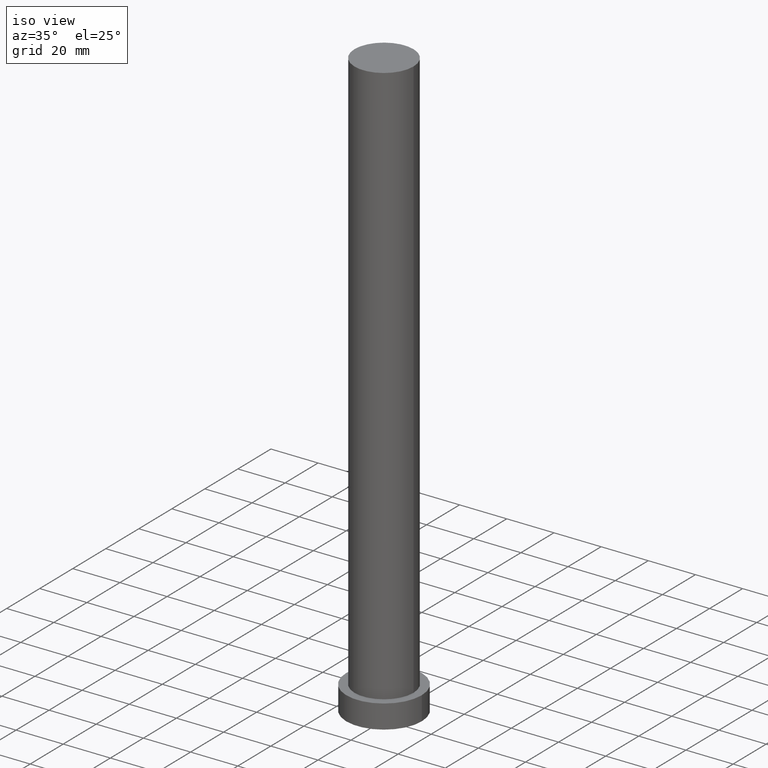
[diagram: clean part render]
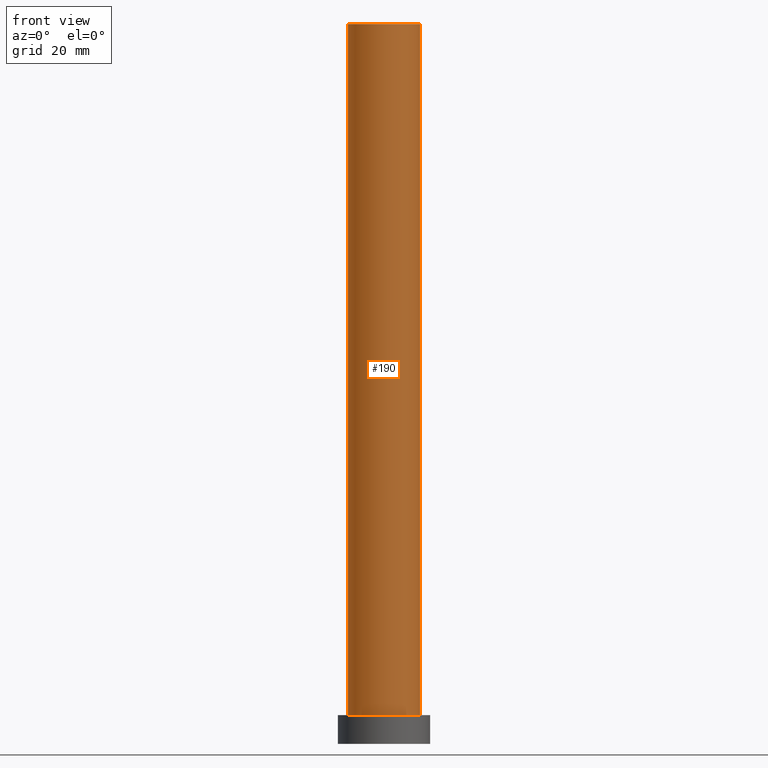
[diagram: tour spotlight — one face highlighted and labeled with its STEP entity id]
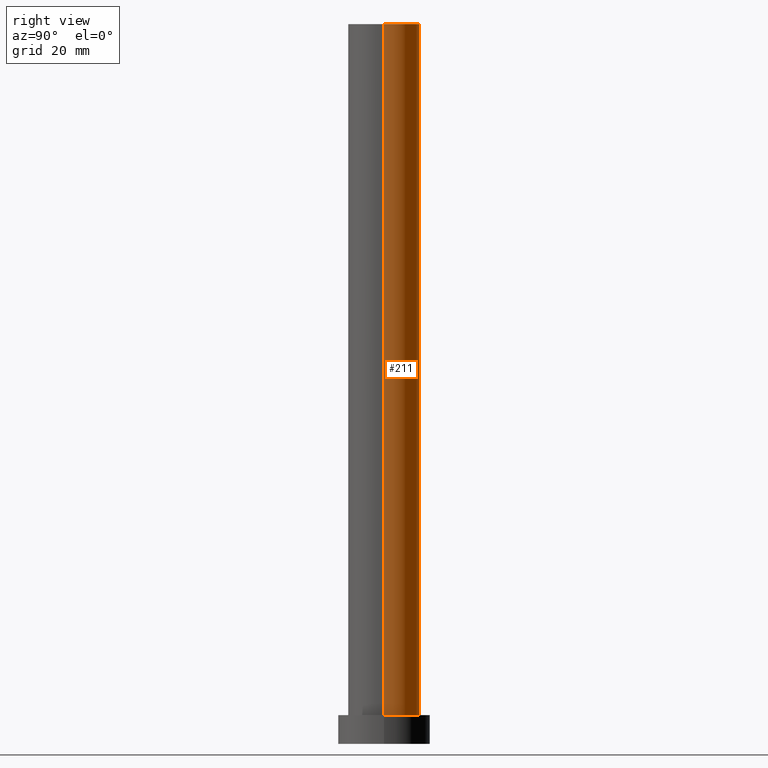
[diagram: tour spotlight — one face highlighted and labeled with its STEP entity id]
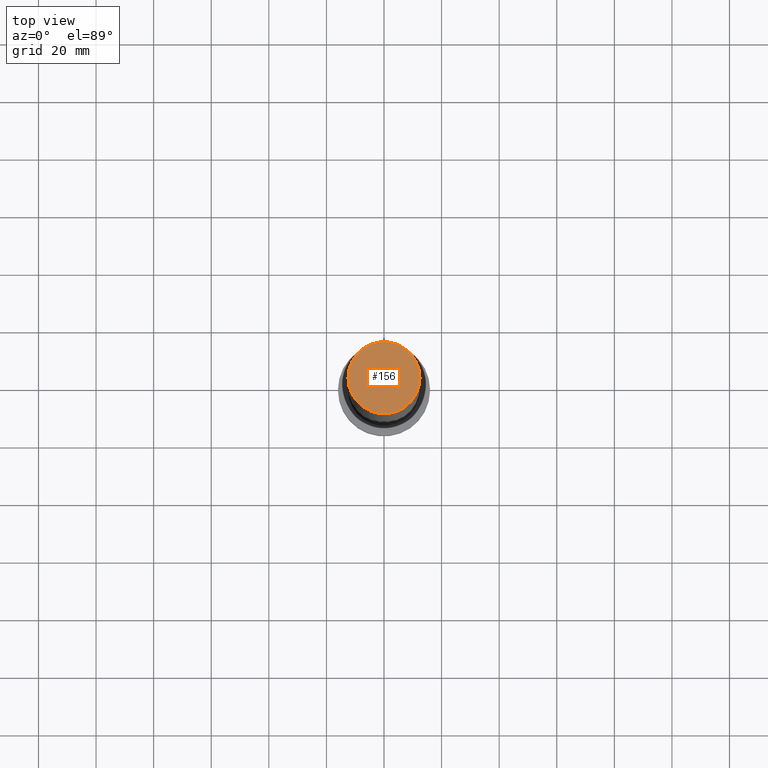
[diagram: tour spotlight — one face highlighted and labeled with its STEP entity id]
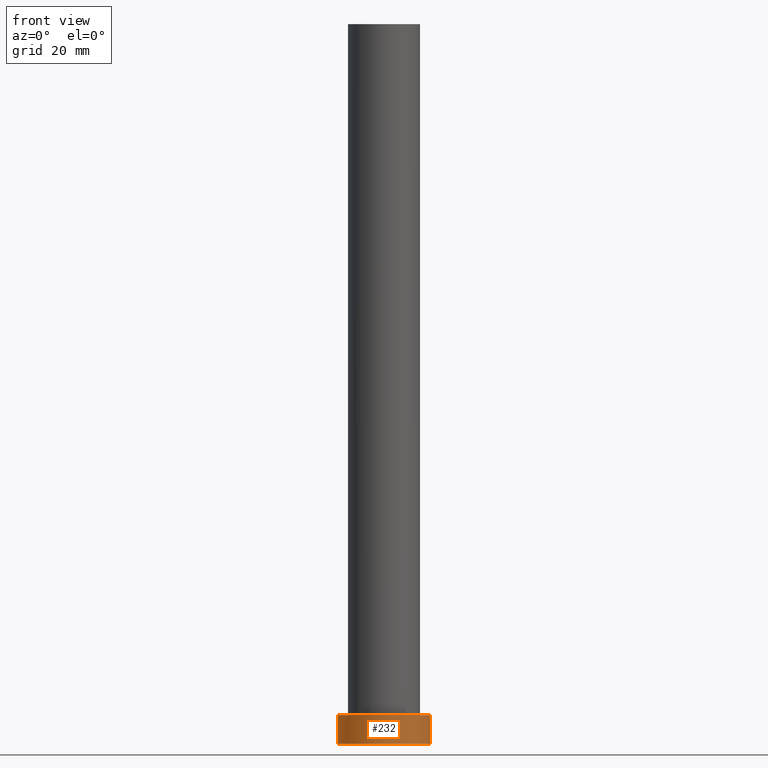
[diagram: tour spotlight — one face highlighted and labeled with its STEP entity id]
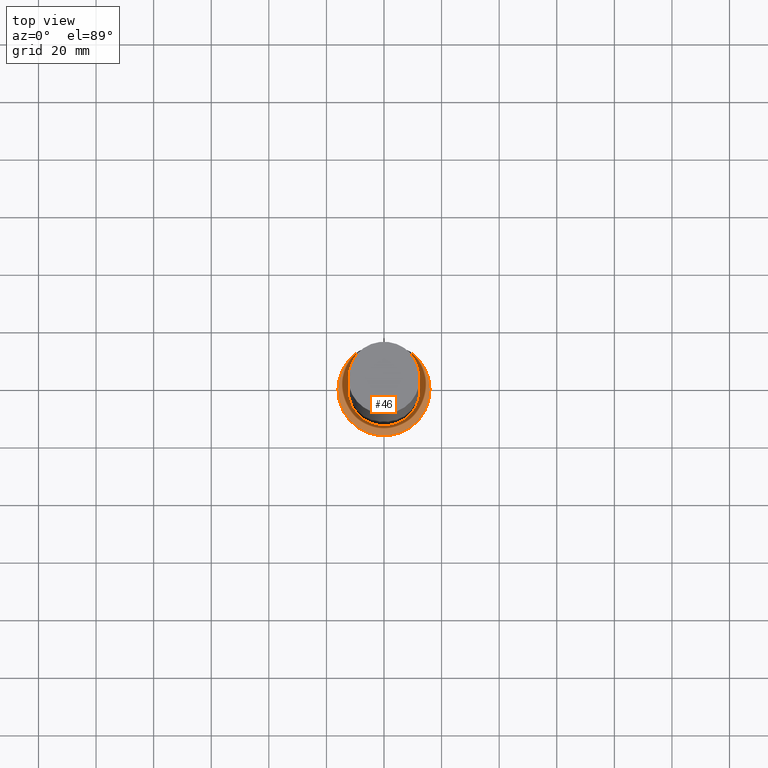
[diagram: tour spotlight — one face highlighted and labeled with its STEP entity id]
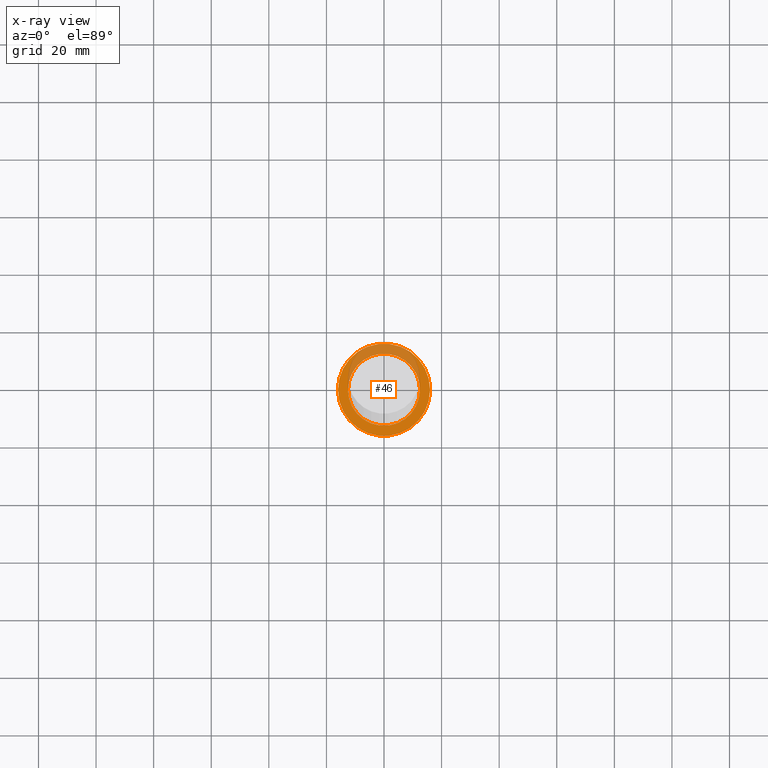
[diagram: x-ray of the same camera — body ghosted, this tour face saturated]
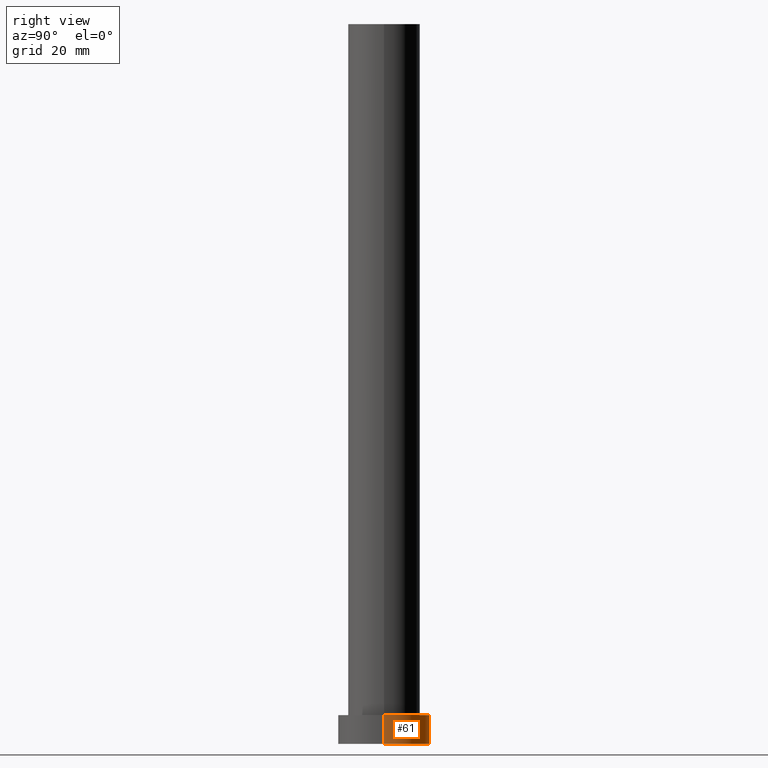
[diagram: tour spotlight — one face highlighted and labeled with its STEP entity id]
A machine part: a face-by-face anatomy tour. The part has 7 B-rep faces; the first image is the clean iso view, then the 6 largest visible faces are spotlighted one at a time (largest first), each with its STEP entity span.

Face 1 — front view, entity #190. In plain terms, the highlighted cylindrical surface (edge-blend (fillet) strip) has radius 12.5 mm, axis along (-0, -0, -1).
Definition (entity closure, byte-faithful):
#10 = ORIENTED_EDGE ( 'NONE', *, *, #221, .F. ) ;
#11 = DIRECTION ( 'NONE',  ( -0.000000000000000000, -0.000000000000000000, -1.000000000000000000 ) ) ;
#16 = VECTOR ( 'NONE', #70, 1000.000000000000000 ) ;
#19 = AXIS2_PLACEMENT_3D ( 'NONE', #184, #11, #249 ) ;
#22 = AXIS2_PLACEMENT_3D ( 'NONE', #241, #59, #179 ) ;
#42 = VERTEX_POINT ( 'NONE', #198 ) ;
#45 = ORIENTED_EDGE ( 'NONE', *, *, #68, .T. ) ;
#54 = CARTESIAN_POINT ( 'NONE',  ( 0.000000000000000000, 0.000000000000000000, 250.0000000000000000 ) ) ;
#59 = DIRECTION ( 'NONE',  ( 0.000000000000000000, 0.000000000000000000, 1.000000000000000000 ) ) ;
#66 = LINE ( 'NONE', #148, #110 ) ;
#68 = EDGE_CURVE ( 'NONE', #206, #86, #144, .T. ) ;
#70 = DIRECTION ( 'NONE',  ( -0.000000000000000000, -0.000000000000000000, -1.000000000000000000 ) ) ;
#72 = CARTESIAN_POINT ( 'NONE',  ( -12.50000000000000000, 0.000000000000000000, 250.0000000000000000 ) ) ;
#86 = VERTEX_POINT ( 'NONE', #194 ) ;
#89 = ORIENTED_EDGE ( 'NONE', *, *, #103, .F. ) ;
#95 = DIRECTION ( 'NONE',  ( 1.000000000000000000, 0.000000000000000000, 0.000000000000000000 ) ) ;
#103 = EDGE_CURVE ( 'NONE', #159, #42, #138, .T. ) ;
#104 = EDGE_LOOP ( 'NONE', ( #10, #89, #130, #45 ) ) ;
#110 = VECTOR ( 'NONE', #131, 1000.000000000000000 ) ;
#130 = ORIENTED_EDGE ( 'NONE', *, *, #168, .T. ) ;
#131 = DIRECTION ( 'NONE',  ( -0.000000000000000000, -0.000000000000000000, -1.000000000000000000 ) ) ;
#134 = CYLINDRICAL_SURFACE ( 'NONE', #19, 12.50000000000000000 ) ;
#138 = CIRCLE ( 'NONE', #143, 12.50000000000000000 ) ;
#143 = AXIS2_PLACEMENT_3D ( 'NONE', #54, #209, #95 ) ;
#144 = CIRCLE ( 'NONE', #22, 12.50000000000000000 ) ;
#148 = CARTESIAN_POINT ( 'NONE',  ( 12.50000000000000000, 1.530808498934191521E-15, 250.0000000000000000 ) ) ;
#159 = VERTEX_POINT ( 'NONE', #186 ) ;
#165 = FACE_OUTER_BOUND ( 'NONE', #104, .T. ) ;
#168 = EDGE_CURVE ( 'NONE', #159, #206, #251, .T. ) ;
#179 = DIRECTION ( 'NONE',  ( 1.000000000000000000, 0.000000000000000000, 0.000000000000000000 ) ) ;
#184 = CARTESIAN_POINT ( 'NONE',  ( 0.000000000000000000, 0.000000000000000000, 250.0000000000000000 ) ) ;
#186 = CARTESIAN_POINT ( 'NONE',  ( -12.50000000000000000, 0.000000000000000000, 250.0000000000000000 ) ) ;
#190 = ADVANCED_FACE ( 'NONE', ( #165 ), #134, .T. ) ;
#194 = CARTESIAN_POINT ( 'NONE',  ( 12.50000000000000000, 1.530808498934191521E-15, 10.00000000000000000 ) ) ;
#198 = CARTESIAN_POINT ( 'NONE',  ( 12.50000000000000000, 1.530808498934191521E-15, 250.0000000000000000 ) ) ;
#205 = CARTESIAN_POINT ( 'NONE',  ( -12.50000000000000000, 0.000000000000000000, 10.00000000000000000 ) ) ;
#206 = VERTEX_POINT ( 'NONE', #205 ) ;
#209 = DIRECTION ( 'NONE',  ( 0.000000000000000000, 0.000000000000000000, 1.000000000000000000 ) ) ;
#221 = EDGE_CURVE ( 'NONE', #42, #86, #66, .T. ) ;
#241 = CARTESIAN_POINT ( 'NONE',  ( 0.000000000000000000, 0.000000000000000000, 10.00000000000000000 ) ) ;
#249 = DIRECTION ( 'NONE',  ( -1.000000000000000000, 0.000000000000000000, 0.000000000000000000 ) ) ;
#251 = LINE ( 'NONE', #72, #16 ) ;

Face 2 — right view, entity #211. In plain terms, the highlighted cylindrical surface (edge-blend (fillet) strip) has radius 12.5 mm, axis along (-0, -0, -1).
Definition (entity closure, byte-faithful):
#1 = CARTESIAN_POINT ( 'NONE',  ( 0.000000000000000000, 0.000000000000000000, 10.00000000000000000 ) ) ;
#7 = EDGE_LOOP ( 'NONE', ( #219, #145, #225, #142 ) ) ;
#13 = CARTESIAN_POINT ( 'NONE',  ( 0.000000000000000000, 0.000000000000000000, 250.0000000000000000 ) ) ;
#15 = DIRECTION ( 'NONE',  ( -0.000000000000000000, -0.000000000000000000, -1.000000000000000000 ) ) ;
#16 = VECTOR ( 'NONE', #70, 1000.000000000000000 ) ;
#37 = DIRECTION ( 'NONE',  ( 1.000000000000000000, 0.000000000000000000, 0.000000000000000000 ) ) ;
#42 = VERTEX_POINT ( 'NONE', #198 ) ;
#60 = DIRECTION ( 'NONE',  ( 0.000000000000000000, 0.000000000000000000, 1.000000000000000000 ) ) ;
#66 = LINE ( 'NONE', #148, #110 ) ;
#70 = DIRECTION ( 'NONE',  ( -0.000000000000000000, -0.000000000000000000, -1.000000000000000000 ) ) ;
#72 = CARTESIAN_POINT ( 'NONE',  ( -12.50000000000000000, 0.000000000000000000, 250.0000000000000000 ) ) ;
#86 = VERTEX_POINT ( 'NONE', #194 ) ;
#97 = CARTESIAN_POINT ( 'NONE',  ( 0.000000000000000000, 0.000000000000000000, 250.0000000000000000 ) ) ;
#109 = FACE_OUTER_BOUND ( 'NONE', #7, .T. ) ;
#110 = VECTOR ( 'NONE', #131, 1000.000000000000000 ) ;
#131 = DIRECTION ( 'NONE',  ( -0.000000000000000000, -0.000000000000000000, -1.000000000000000000 ) ) ;
#133 = EDGE_CURVE ( 'NONE', #42, #159, #239, .T. ) ;
#142 = ORIENTED_EDGE ( 'NONE', *, *, #168, .F. ) ;
#145 = ORIENTED_EDGE ( 'NONE', *, *, #221, .T. ) ;
#148 = CARTESIAN_POINT ( 'NONE',  ( 12.50000000000000000, 1.530808498934191521E-15, 250.0000000000000000 ) ) ;
#159 = VERTEX_POINT ( 'NONE', #186 ) ;
#168 = EDGE_CURVE ( 'NONE', #159, #206, #251, .T. ) ;
#176 = AXIS2_PLACEMENT_3D ( 'NONE', #1, #60, #189 ) ;
#185 = CYLINDRICAL_SURFACE ( 'NONE', #215, 12.50000000000000000 ) ;
#186 = CARTESIAN_POINT ( 'NONE',  ( -12.50000000000000000, 0.000000000000000000, 250.0000000000000000 ) ) ;
#189 = DIRECTION ( 'NONE',  ( 1.000000000000000000, 0.000000000000000000, 0.000000000000000000 ) ) ;
#192 = DIRECTION ( 'NONE',  ( 0.000000000000000000, 0.000000000000000000, 1.000000000000000000 ) ) ;
#194 = CARTESIAN_POINT ( 'NONE',  ( 12.50000000000000000, 1.530808498934191521E-15, 10.00000000000000000 ) ) ;
#198 = CARTESIAN_POINT ( 'NONE',  ( 12.50000000000000000, 1.530808498934191521E-15, 250.0000000000000000 ) ) ;
#205 = CARTESIAN_POINT ( 'NONE',  ( -12.50000000000000000, 0.000000000000000000, 10.00000000000000000 ) ) ;
#206 = VERTEX_POINT ( 'NONE', #205 ) ;
#211 = ADVANCED_FACE ( 'NONE', ( #109 ), #185, .T. ) ;
#215 = AXIS2_PLACEMENT_3D ( 'NONE', #13, #15, #250 ) ;
#219 = ORIENTED_EDGE ( 'NONE', *, *, #133, .F. ) ;
#221 = EDGE_CURVE ( 'NONE', #42, #86, #66, .T. ) ;
#225 = ORIENTED_EDGE ( 'NONE', *, *, #245, .T. ) ;
#235 = AXIS2_PLACEMENT_3D ( 'NONE', #97, #192, #37 ) ;
#239 = CIRCLE ( 'NONE', #235, 12.50000000000000000 ) ;
#245 = EDGE_CURVE ( 'NONE', #86, #206, #254, .T. ) ;
#250 = DIRECTION ( 'NONE',  ( -1.000000000000000000, 0.000000000000000000, 0.000000000000000000 ) ) ;
#251 = LINE ( 'NONE', #72, #16 ) ;
#254 = CIRCLE ( 'NONE', #176, 12.50000000000000000 ) ;

Face 3 — top view, entity #156. In plain terms, the highlighted planar face has unit normal (0, 0, 1).
Definition (entity closure, byte-faithful):
#9 = DIRECTION ( 'NONE',  ( 1.000000000000000000, 0.000000000000000000, -0.000000000000000000 ) ) ;
#20 = PLANE ( 'NONE',  #26 ) ;
#26 = AXIS2_PLACEMENT_3D ( 'NONE', #217, #63, #9 ) ;
#37 = DIRECTION ( 'NONE',  ( 1.000000000000000000, 0.000000000000000000, 0.000000000000000000 ) ) ;
#42 = VERTEX_POINT ( 'NONE', #198 ) ;
#54 = CARTESIAN_POINT ( 'NONE',  ( 0.000000000000000000, 0.000000000000000000, 250.0000000000000000 ) ) ;
#63 = DIRECTION ( 'NONE',  ( 0.000000000000000000, 0.000000000000000000, 1.000000000000000000 ) ) ;
#95 = DIRECTION ( 'NONE',  ( 1.000000000000000000, 0.000000000000000000, 0.000000000000000000 ) ) ;
#97 = CARTESIAN_POINT ( 'NONE',  ( 0.000000000000000000, 0.000000000000000000, 250.0000000000000000 ) ) ;
#103 = EDGE_CURVE ( 'NONE', #159, #42, #138, .T. ) ;
#115 = FACE_OUTER_BOUND ( 'NONE', #146, .T. ) ;
#133 = EDGE_CURVE ( 'NONE', #42, #159, #239, .T. ) ;
#138 = CIRCLE ( 'NONE', #143, 12.50000000000000000 ) ;
#143 = AXIS2_PLACEMENT_3D ( 'NONE', #54, #209, #95 ) ;
#146 = EDGE_LOOP ( 'NONE', ( #178, #202 ) ) ;
#156 = ADVANCED_FACE ( 'NONE', ( #115 ), #20, .T. ) ;
#159 = VERTEX_POINT ( 'NONE', #186 ) ;
#178 = ORIENTED_EDGE ( 'NONE', *, *, #103, .T. ) ;
#186 = CARTESIAN_POINT ( 'NONE',  ( -12.50000000000000000, 0.000000000000000000, 250.0000000000000000 ) ) ;
#192 = DIRECTION ( 'NONE',  ( 0.000000000000000000, 0.000000000000000000, 1.000000000000000000 ) ) ;
#198 = CARTESIAN_POINT ( 'NONE',  ( 12.50000000000000000, 1.530808498934191521E-15, 250.0000000000000000 ) ) ;
#202 = ORIENTED_EDGE ( 'NONE', *, *, #133, .T. ) ;
#209 = DIRECTION ( 'NONE',  ( 0.000000000000000000, 0.000000000000000000, 1.000000000000000000 ) ) ;
#217 = CARTESIAN_POINT ( 'NONE',  ( 0.000000000000000000, 0.000000000000000000, 250.0000000000000000 ) ) ;
#235 = AXIS2_PLACEMENT_3D ( 'NONE', #97, #192, #37 ) ;
#239 = CIRCLE ( 'NONE', #235, 12.50000000000000000 ) ;

Face 4 — front view, entity #232. In plain terms, the highlighted cylindrical surface (partial cylindrical patch) has radius 16 mm, axis along (-0, -0, -1).
Definition (entity closure, byte-faithful):
#4 = CARTESIAN_POINT ( 'NONE',  ( 0.000000000000000000, 0.000000000000000000, 10.00000000000000000 ) ) ;
#12 = DIRECTION ( 'NONE',  ( 1.000000000000000000, 0.000000000000000000, 0.000000000000000000 ) ) ;
#24 = EDGE_CURVE ( 'NONE', #33, #47, #69, .T. ) ;
#27 = DIRECTION ( 'NONE',  ( 0.000000000000000000, 0.000000000000000000, 1.000000000000000000 ) ) ;
#28 = AXIS2_PLACEMENT_3D ( 'NONE', #122, #27, #12 ) ;
#33 = VERTEX_POINT ( 'NONE', #64 ) ;
#35 = CIRCLE ( 'NONE', #107, 16.00000000000000000 ) ;
#38 = FACE_OUTER_BOUND ( 'NONE', #163, .T. ) ;
#40 = EDGE_CURVE ( 'NONE', #177, #47, #43, .T. ) ;
#43 = LINE ( 'NONE', #128, #55 ) ;
#47 = VERTEX_POINT ( 'NONE', #141 ) ;
#52 = CARTESIAN_POINT ( 'NONE',  ( -16.00000000000000000, 0.000000000000000000, 10.00000000000000000 ) ) ;
#53 = DIRECTION ( 'NONE',  ( 1.000000000000000000, 0.000000000000000000, 0.000000000000000000 ) ) ;
#55 = VECTOR ( 'NONE', #102, 1000.000000000000000 ) ;
#64 = CARTESIAN_POINT ( 'NONE',  ( -16.00000000000000000, 0.000000000000000000, 0.000000000000000000 ) ) ;
#69 = CIRCLE ( 'NONE', #28, 16.00000000000000000 ) ;
#74 = EDGE_CURVE ( 'NONE', #158, #33, #75, .T. ) ;
#75 = LINE ( 'NONE', #212, #213 ) ;
#79 = DIRECTION ( 'NONE',  ( -0.000000000000000000, -0.000000000000000000, -1.000000000000000000 ) ) ;
#99 = CARTESIAN_POINT ( 'NONE',  ( 0.000000000000000000, 0.000000000000000000, 10.00000000000000000 ) ) ;
#100 = ORIENTED_EDGE ( 'NONE', *, *, #240, .F. ) ;
#102 = DIRECTION ( 'NONE',  ( -0.000000000000000000, -0.000000000000000000, -1.000000000000000000 ) ) ;
#106 = ORIENTED_EDGE ( 'NONE', *, *, #24, .T. ) ;
#107 = AXIS2_PLACEMENT_3D ( 'NONE', #99, #173, #53 ) ;
#112 = DIRECTION ( 'NONE',  ( -1.000000000000000000, 0.000000000000000000, 0.000000000000000000 ) ) ;
#116 = CYLINDRICAL_SURFACE ( 'NONE', #147, 16.00000000000000000 ) ;
#122 = CARTESIAN_POINT ( 'NONE',  ( 0.000000000000000000, 0.000000000000000000, 0.000000000000000000 ) ) ;
#128 = CARTESIAN_POINT ( 'NONE',  ( 16.00000000000000000, 1.959434878635765131E-15, 10.00000000000000000 ) ) ;
#135 = DIRECTION ( 'NONE',  ( -0.000000000000000000, -0.000000000000000000, -1.000000000000000000 ) ) ;
#141 = CARTESIAN_POINT ( 'NONE',  ( 16.00000000000000000, 1.959434878635765131E-15, 0.000000000000000000 ) ) ;
#147 = AXIS2_PLACEMENT_3D ( 'NONE', #4, #79, #112 ) ;
#158 = VERTEX_POINT ( 'NONE', #52 ) ;
#163 = EDGE_LOOP ( 'NONE', ( #244, #100, #242, #106 ) ) ;
#173 = DIRECTION ( 'NONE',  ( 0.000000000000000000, 0.000000000000000000, 1.000000000000000000 ) ) ;
#177 = VERTEX_POINT ( 'NONE', #228 ) ;
#212 = CARTESIAN_POINT ( 'NONE',  ( -16.00000000000000000, 0.000000000000000000, 10.00000000000000000 ) ) ;
#213 = VECTOR ( 'NONE', #135, 1000.000000000000000 ) ;
#228 = CARTESIAN_POINT ( 'NONE',  ( 16.00000000000000000, 1.959434878635765131E-15, 10.00000000000000000 ) ) ;
#232 = ADVANCED_FACE ( 'NONE', ( #38 ), #116, .T. ) ;
#240 = EDGE_CURVE ( 'NONE', #158, #177, #35, .T. ) ;
#242 = ORIENTED_EDGE ( 'NONE', *, *, #74, .T. ) ;
#244 = ORIENTED_EDGE ( 'NONE', *, *, #40, .F. ) ;

Face 5 — top view, entity #46. An x-ray twin of the same camera follows (body ghosted, this face saturated) — the face is partly hidden behind the body. In plain terms, the highlighted planar face has unit normal (0, 0, 1).
Definition (entity closure, byte-faithful):
#1 = CARTESIAN_POINT ( 'NONE',  ( 0.000000000000000000, 0.000000000000000000, 10.00000000000000000 ) ) ;
#8 = ORIENTED_EDGE ( 'NONE', *, *, #68, .F. ) ;
#18 = AXIS2_PLACEMENT_3D ( 'NONE', #243, #25, #155 ) ;
#22 = AXIS2_PLACEMENT_3D ( 'NONE', #241, #59, #179 ) ;
#25 = DIRECTION ( 'NONE',  ( 0.000000000000000000, 0.000000000000000000, 1.000000000000000000 ) ) ;
#31 = FACE_OUTER_BOUND ( 'NONE', #125, .T. ) ;
#35 = CIRCLE ( 'NONE', #107, 16.00000000000000000 ) ;
#41 = CARTESIAN_POINT ( 'NONE',  ( 0.000000000000000000, 0.000000000000000000, 10.00000000000000000 ) ) ;
#46 = ADVANCED_FACE ( 'NONE', ( #108, #31 ), #126, .T. ) ;
#50 = ORIENTED_EDGE ( 'NONE', *, *, #240, .T. ) ;
#52 = CARTESIAN_POINT ( 'NONE',  ( -16.00000000000000000, 0.000000000000000000, 10.00000000000000000 ) ) ;
#53 = DIRECTION ( 'NONE',  ( 1.000000000000000000, 0.000000000000000000, 0.000000000000000000 ) ) ;
#56 = EDGE_CURVE ( 'NONE', #177, #158, #236, .T. ) ;
#59 = DIRECTION ( 'NONE',  ( 0.000000000000000000, 0.000000000000000000, 1.000000000000000000 ) ) ;
#60 = DIRECTION ( 'NONE',  ( 0.000000000000000000, 0.000000000000000000, 1.000000000000000000 ) ) ;
#68 = EDGE_CURVE ( 'NONE', #206, #86, #144, .T. ) ;
#86 = VERTEX_POINT ( 'NONE', #194 ) ;
#92 = AXIS2_PLACEMENT_3D ( 'NONE', #41, #121, #196 ) ;
#99 = CARTESIAN_POINT ( 'NONE',  ( 0.000000000000000000, 0.000000000000000000, 10.00000000000000000 ) ) ;
#107 = AXIS2_PLACEMENT_3D ( 'NONE', #99, #173, #53 ) ;
#108 = FACE_BOUND ( 'NONE', #200, .T. ) ;
#121 = DIRECTION ( 'NONE',  ( 0.000000000000000000, 0.000000000000000000, 1.000000000000000000 ) ) ;
#125 = EDGE_LOOP ( 'NONE', ( #50, #157 ) ) ;
#126 = PLANE ( 'NONE',  #92 ) ;
#144 = CIRCLE ( 'NONE', #22, 12.50000000000000000 ) ;
#155 = DIRECTION ( 'NONE',  ( 1.000000000000000000, 0.000000000000000000, 0.000000000000000000 ) ) ;
#157 = ORIENTED_EDGE ( 'NONE', *, *, #56, .T. ) ;
#158 = VERTEX_POINT ( 'NONE', #52 ) ;
#173 = DIRECTION ( 'NONE',  ( 0.000000000000000000, 0.000000000000000000, 1.000000000000000000 ) ) ;
#176 = AXIS2_PLACEMENT_3D ( 'NONE', #1, #60, #189 ) ;
#177 = VERTEX_POINT ( 'NONE', #228 ) ;
#179 = DIRECTION ( 'NONE',  ( 1.000000000000000000, 0.000000000000000000, 0.000000000000000000 ) ) ;
#189 = DIRECTION ( 'NONE',  ( 1.000000000000000000, 0.000000000000000000, 0.000000000000000000 ) ) ;
#194 = CARTESIAN_POINT ( 'NONE',  ( 12.50000000000000000, 1.530808498934191521E-15, 10.00000000000000000 ) ) ;
#196 = DIRECTION ( 'NONE',  ( 1.000000000000000000, 0.000000000000000000, -0.000000000000000000 ) ) ;
#200 = EDGE_LOOP ( 'NONE', ( #8, #223 ) ) ;
#205 = CARTESIAN_POINT ( 'NONE',  ( -12.50000000000000000, 0.000000000000000000, 10.00000000000000000 ) ) ;
#206 = VERTEX_POINT ( 'NONE', #205 ) ;
#223 = ORIENTED_EDGE ( 'NONE', *, *, #245, .F. ) ;
#228 = CARTESIAN_POINT ( 'NONE',  ( 16.00000000000000000, 1.959434878635765131E-15, 10.00000000000000000 ) ) ;
#236 = CIRCLE ( 'NONE', #18, 16.00000000000000000 ) ;
#240 = EDGE_CURVE ( 'NONE', #158, #177, #35, .T. ) ;
#241 = CARTESIAN_POINT ( 'NONE',  ( 0.000000000000000000, 0.000000000000000000, 10.00000000000000000 ) ) ;
#243 = CARTESIAN_POINT ( 'NONE',  ( 0.000000000000000000, 0.000000000000000000, 10.00000000000000000 ) ) ;
#245 = EDGE_CURVE ( 'NONE', #86, #206, #254, .T. ) ;
#254 = CIRCLE ( 'NONE', #176, 12.50000000000000000 ) ;

Face 6 — right view, entity #61. In plain terms, the highlighted cylindrical surface (partial cylindrical patch) has radius 16 mm, axis along (-0, -0, -1).
Definition (entity closure, byte-faithful):
#5 = CARTESIAN_POINT ( 'NONE',  ( 0.000000000000000000, 0.000000000000000000, 10.00000000000000000 ) ) ;
#18 = AXIS2_PLACEMENT_3D ( 'NONE', #243, #25, #155 ) ;
#25 = DIRECTION ( 'NONE',  ( 0.000000000000000000, 0.000000000000000000, 1.000000000000000000 ) ) ;
#30 = EDGE_LOOP ( 'NONE', ( #81, #44, #65, #181 ) ) ;
#33 = VERTEX_POINT ( 'NONE', #64 ) ;
#40 = EDGE_CURVE ( 'NONE', #177, #47, #43, .T. ) ;
#43 = LINE ( 'NONE', #128, #55 ) ;
#44 = ORIENTED_EDGE ( 'NONE', *, *, #40, .T. ) ;
#47 = VERTEX_POINT ( 'NONE', #141 ) ;
#48 = DIRECTION ( 'NONE',  ( 0.000000000000000000, 0.000000000000000000, 1.000000000000000000 ) ) ;
#52 = CARTESIAN_POINT ( 'NONE',  ( -16.00000000000000000, 0.000000000000000000, 10.00000000000000000 ) ) ;
#55 = VECTOR ( 'NONE', #102, 1000.000000000000000 ) ;
#56 = EDGE_CURVE ( 'NONE', #177, #158, #236, .T. ) ;
#61 = ADVANCED_FACE ( 'NONE', ( #98 ), #124, .T. ) ;
#64 = CARTESIAN_POINT ( 'NONE',  ( -16.00000000000000000, 0.000000000000000000, 0.000000000000000000 ) ) ;
#65 = ORIENTED_EDGE ( 'NONE', *, *, #183, .T. ) ;
#74 = EDGE_CURVE ( 'NONE', #158, #33, #75, .T. ) ;
#75 = LINE ( 'NONE', #212, #213 ) ;
#80 = DIRECTION ( 'NONE',  ( -0.000000000000000000, -0.000000000000000000, -1.000000000000000000 ) ) ;
#81 = ORIENTED_EDGE ( 'NONE', *, *, #56, .F. ) ;
#87 = AXIS2_PLACEMENT_3D ( 'NONE', #5, #80, #201 ) ;
#88 = DIRECTION ( 'NONE',  ( 1.000000000000000000, 0.000000000000000000, 0.000000000000000000 ) ) ;
#98 = FACE_OUTER_BOUND ( 'NONE', #30, .T. ) ;
#102 = DIRECTION ( 'NONE',  ( -0.000000000000000000, -0.000000000000000000, -1.000000000000000000 ) ) ;
#124 = CYLINDRICAL_SURFACE ( 'NONE', #87, 16.00000000000000000 ) ;
#128 = CARTESIAN_POINT ( 'NONE',  ( 16.00000000000000000, 1.959434878635765131E-15, 10.00000000000000000 ) ) ;
#135 = DIRECTION ( 'NONE',  ( -0.000000000000000000, -0.000000000000000000, -1.000000000000000000 ) ) ;
#141 = CARTESIAN_POINT ( 'NONE',  ( 16.00000000000000000, 1.959434878635765131E-15, 0.000000000000000000 ) ) ;
#155 = DIRECTION ( 'NONE',  ( 1.000000000000000000, 0.000000000000000000, 0.000000000000000000 ) ) ;
#158 = VERTEX_POINT ( 'NONE', #52 ) ;
#161 = CARTESIAN_POINT ( 'NONE',  ( 0.000000000000000000, 0.000000000000000000, 0.000000000000000000 ) ) ;
#167 = AXIS2_PLACEMENT_3D ( 'NONE', #161, #48, #88 ) ;
#171 = CIRCLE ( 'NONE', #167, 16.00000000000000000 ) ;
#177 = VERTEX_POINT ( 'NONE', #228 ) ;
#181 = ORIENTED_EDGE ( 'NONE', *, *, #74, .F. ) ;
#183 = EDGE_CURVE ( 'NONE', #47, #33, #171, .T. ) ;
#201 = DIRECTION ( 'NONE',  ( -1.000000000000000000, 0.000000000000000000, 0.000000000000000000 ) ) ;
#212 = CARTESIAN_POINT ( 'NONE',  ( -16.00000000000000000, 0.000000000000000000, 10.00000000000000000 ) ) ;
#213 = VECTOR ( 'NONE', #135, 1000.000000000000000 ) ;
#228 = CARTESIAN_POINT ( 'NONE',  ( 16.00000000000000000, 1.959434878635765131E-15, 10.00000000000000000 ) ) ;
#236 = CIRCLE ( 'NONE', #18, 16.00000000000000000 ) ;
#243 = CARTESIAN_POINT ( 'NONE',  ( 0.000000000000000000, 0.000000000000000000, 10.00000000000000000 ) ) ;